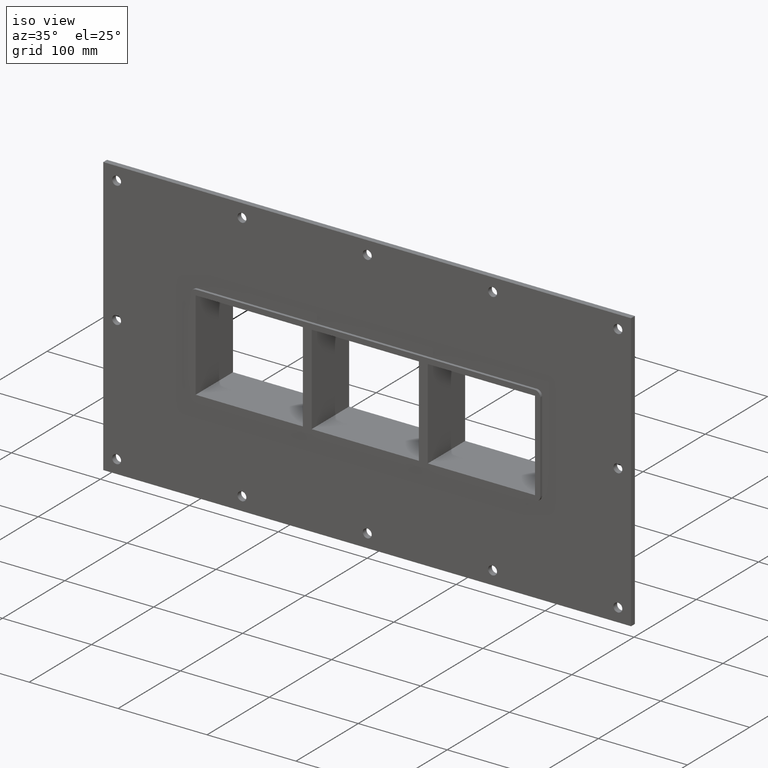
[diagram: clean part render]
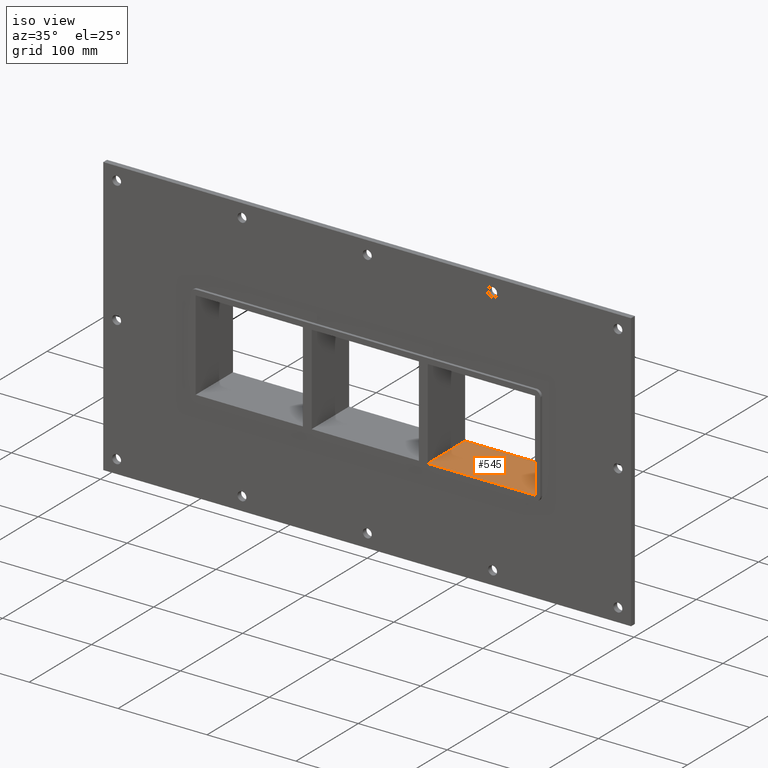
[diagram: same view with one face highlighted and labeled with its STEP entity id]
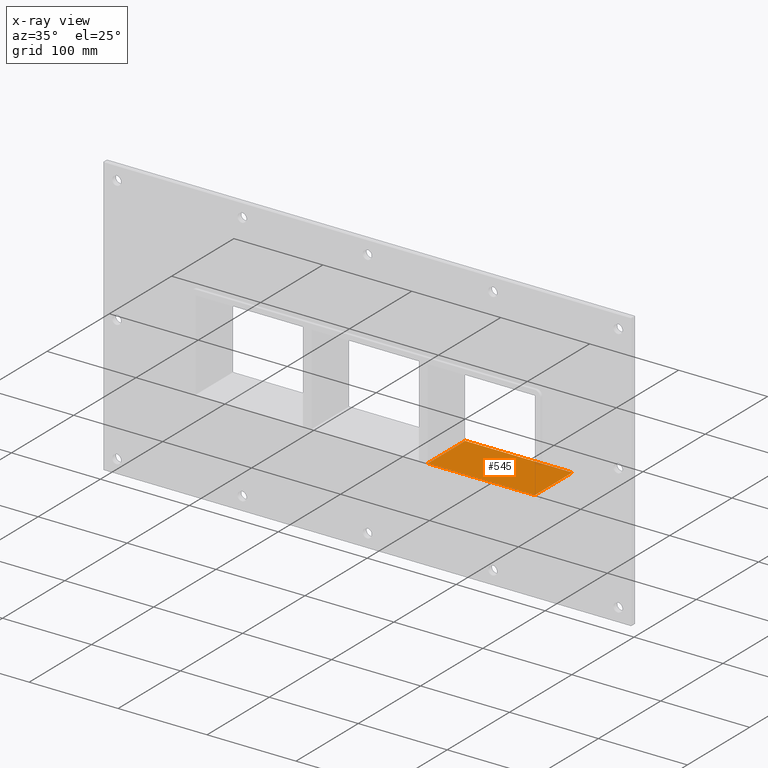
[diagram: x-ray of the same camera — body ghosted, the highlighted face saturated]
A machine part, iso view. The second image highlights one B-rep face of the part: STEP entity #545.
The next image is the same camera in x-ray: the body ghosted, the highlighted face saturated — about 1% of this face is hidden behind the body in this view.
In plain terms, the highlighted planar face has unit normal (0, 0, -1).
Its self-contained STEP definition (entity closure, byte-faithful):
#451=CARTESIAN_POINT('',(70.250000000003638,-3.0,-50.499999999984233));
#452=VERTEX_POINT('',#451);
#459=CARTESIAN_POINT('',(70.250000000003638,57.0,-50.499999999984233));
#460=VERTEX_POINT('',#459);
#461=CARTESIAN_POINT('',(70.250000000003638,57.000000000000007,-50.499999999999986));
#462=DIRECTION('',(0.0,-1.0,0.0));
#463=VECTOR('',#462,60.000000000000007);
#464=LINE('',#461,#463);
#465=EDGE_CURVE('',#460,#452,#464,.T.);
#515=CARTESIAN_POINT('',(190.75000000000006,0.0,-50.499999999999986));
#516=DIRECTION('',(0.0,0.0,-1.0));
#517=DIRECTION('',(-1.0,0.0,0.0));
#518=AXIS2_PLACEMENT_3D('',#515,#516,#517);
#519=PLANE('',#518);
#520=ORIENTED_EDGE('',*,*,#465,.T.);
#521=CARTESIAN_POINT('',(190.75000000000006,-3.0,-50.499999999999986));
#522=VERTEX_POINT('',#521);
#523=CARTESIAN_POINT('',(190.75000000000006,-3.0,-50.499999999999986));
#524=DIRECTION('',(-1.0,0.0,0.0));
#525=VECTOR('',#524,120.49999999999642);
#526=LINE('',#523,#525);
#527=EDGE_CURVE('',#522,#452,#526,.T.);
#528=ORIENTED_EDGE('',*,*,#527,.F.);
#529=CARTESIAN_POINT('',(190.75000000000006,57.0,-50.499999999999986));
#530=VERTEX_POINT('',#529);
#531=CARTESIAN_POINT('',(190.75000000000006,56.999999999999993,-50.499999999999986));
#532=DIRECTION('',(0.0,-1.0,0.0));
#533=VECTOR('',#532,59.999999999999993);
#534=LINE('',#531,#533);
#535=EDGE_CURVE('',#530,#522,#534,.T.);
#536=ORIENTED_EDGE('',*,*,#535,.F.);
#537=CARTESIAN_POINT('',(70.250000000003638,57.0,-50.499999999999986));
#538=DIRECTION('',(1.0,0.0,0.0));
#539=VECTOR('',#538,120.49999999999642);
#540=LINE('',#537,#539);
#541=EDGE_CURVE('',#460,#530,#540,.T.);
#542=ORIENTED_EDGE('',*,*,#541,.F.);
#543=EDGE_LOOP('',(#520,#528,#536,#542));
#544=FACE_OUTER_BOUND('',#543,.T.);
#545=ADVANCED_FACE('',(#544),#519,.F.);